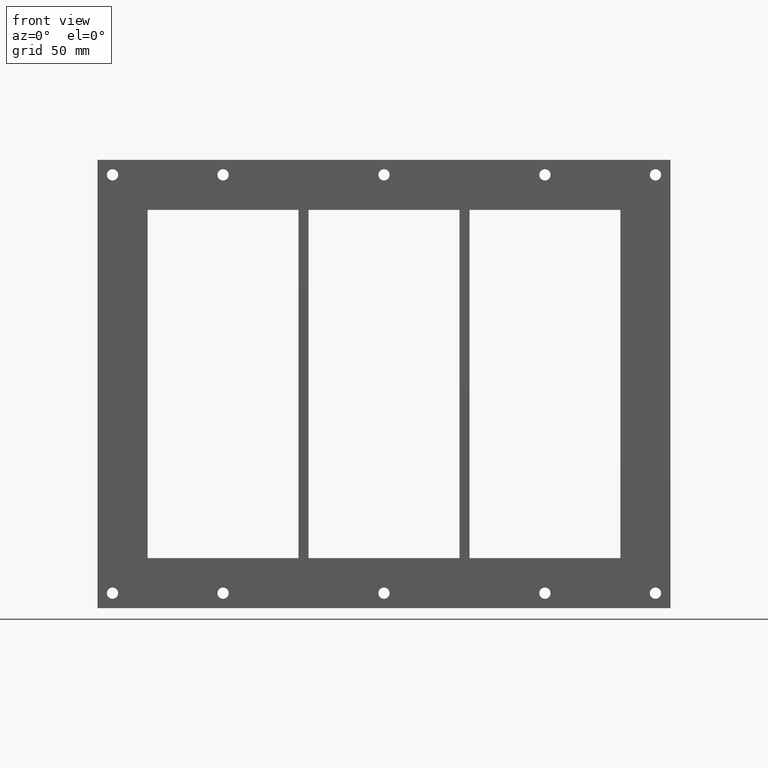
[diagram: clean part render]
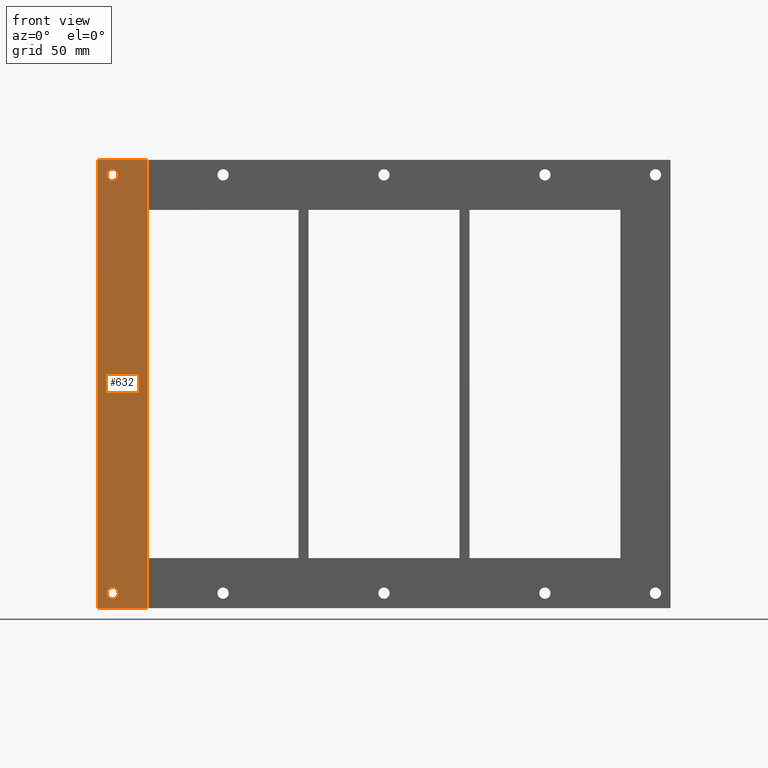
[diagram: same view with one face highlighted and labeled with its STEP entity id]
A machine part, front view. The second image highlights one B-rep face of the part: STEP entity #632.
In plain terms, the highlighted planar face has unit normal (-0, -1, 0).
Its self-contained STEP definition (entity closure, byte-faithful):
#274=CARTESIAN_POINT('',(32.500000000000007,0.0,345.99999999999994));
#275=VERTEX_POINT('',#274);
#276=CARTESIAN_POINT('',(28.000000000000004,0.0,345.99999999999994));
#277=DIRECTION('',(0.0,1.0,0.0));
#278=DIRECTION('',(1.0,0.0,0.0));
#279=AXIS2_PLACEMENT_3D('',#276,#277,#278);
#280=CIRCLE('',#279,4.5);
#281=EDGE_CURVE('',#275,#275,#280,.T.);
#302=CARTESIAN_POINT('',(32.500000000000007,0.0,12.000000000000002));
#303=VERTEX_POINT('',#302);
#304=CARTESIAN_POINT('',(28.000000000000004,0.0,12.000000000000002));
#305=DIRECTION('',(0.0,1.0,0.0));
#306=DIRECTION('',(1.0,0.0,0.0));
#307=AXIS2_PLACEMENT_3D('',#304,#305,#306);
#308=CIRCLE('',#307,4.5);
#309=EDGE_CURVE('',#303,#303,#308,.T.);
#399=CARTESIAN_POINT('',(40.0,0.0,0.0));
#400=VERTEX_POINT('',#399);
#407=CARTESIAN_POINT('',(0.0,0.0,0.0));
#408=VERTEX_POINT('',#407);
#409=CARTESIAN_POINT('',(0.0,0.0,0.0));
#410=DIRECTION('',(1.0,0.0,0.0));
#411=VECTOR('',#410,40.0);
#412=LINE('',#409,#411);
#413=EDGE_CURVE('',#408,#400,#412,.T.);
#522=CARTESIAN_POINT('',(0.0,0.0,358.0));
#523=VERTEX_POINT('',#522);
#530=CARTESIAN_POINT('',(40.0,0.0,358.0));
#531=VERTEX_POINT('',#530);
#532=CARTESIAN_POINT('',(40.0,0.0,358.0));
#533=DIRECTION('',(-1.0,0.0,0.0));
#534=VECTOR('',#533,40.0);
#535=LINE('',#532,#534);
#536=EDGE_CURVE('',#531,#523,#535,.T.);
#605=CARTESIAN_POINT('',(40.0,0.0,0.0));
#606=DIRECTION('',(0.0,-1.0,0.0));
#607=DIRECTION('',(0.0,0.0,-1.0));
#608=AXIS2_PLACEMENT_3D('',#605,#606,#607);
#609=PLANE('',#608);
#610=ORIENTED_EDGE('',*,*,#536,.T.);
#611=CARTESIAN_POINT('',(0.0,0.0,0.0));
#612=DIRECTION('',(0.0,0.0,1.0));
#613=VECTOR('',#612,358.0);
#614=LINE('',#611,#613);
#615=EDGE_CURVE('',#408,#523,#614,.T.);
#616=ORIENTED_EDGE('',*,*,#615,.F.);
#617=ORIENTED_EDGE('',*,*,#413,.T.);
#618=CARTESIAN_POINT('',(40.0,0.0,0.0));
#619=DIRECTION('',(0.0,0.0,1.0));
#620=VECTOR('',#619,358.0);
#621=LINE('',#618,#620);
#622=EDGE_CURVE('',#400,#531,#621,.T.);
#623=ORIENTED_EDGE('',*,*,#622,.T.);
#624=EDGE_LOOP('',(#610,#616,#617,#623));
#625=FACE_OUTER_BOUND('',#624,.T.);
#626=ORIENTED_EDGE('',*,*,#281,.T.);
#627=EDGE_LOOP('',(#626));
#628=FACE_BOUND('',#627,.T.);
#629=ORIENTED_EDGE('',*,*,#309,.T.);
#630=EDGE_LOOP('',(#629));
#631=FACE_BOUND('',#630,.T.);
#632=ADVANCED_FACE('',(#625,#628,#631),#609,.T.);